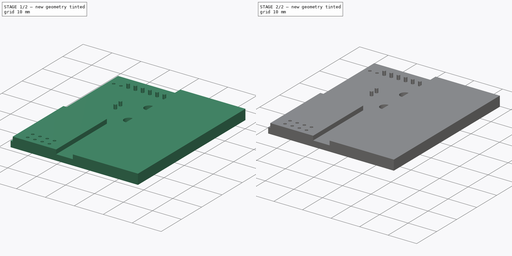
[diagram: build sequence overview — one tinted view per stage of 2, left to right]
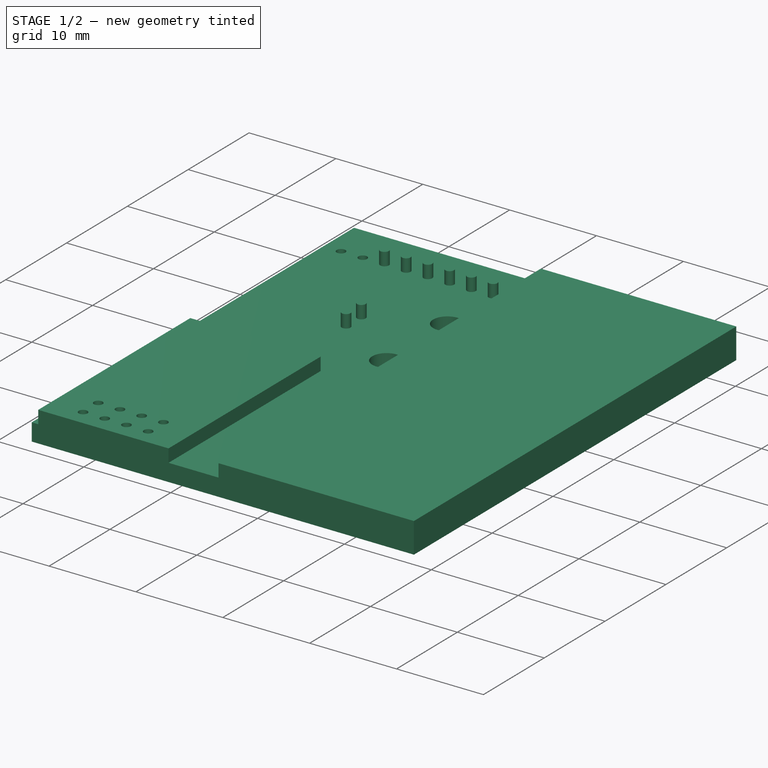
[diagram: stage 1 of 2 — iso view after this stage's code; geometry added in this stage tinted green]
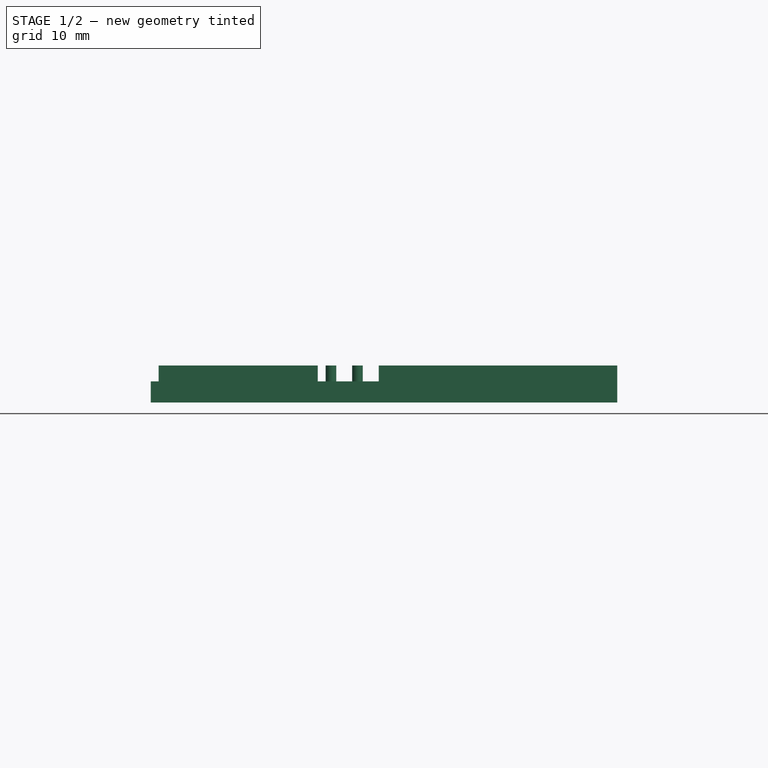
[diagram: stage 1 of 2 — front view after this stage's code; geometry added in this stage tinted green]
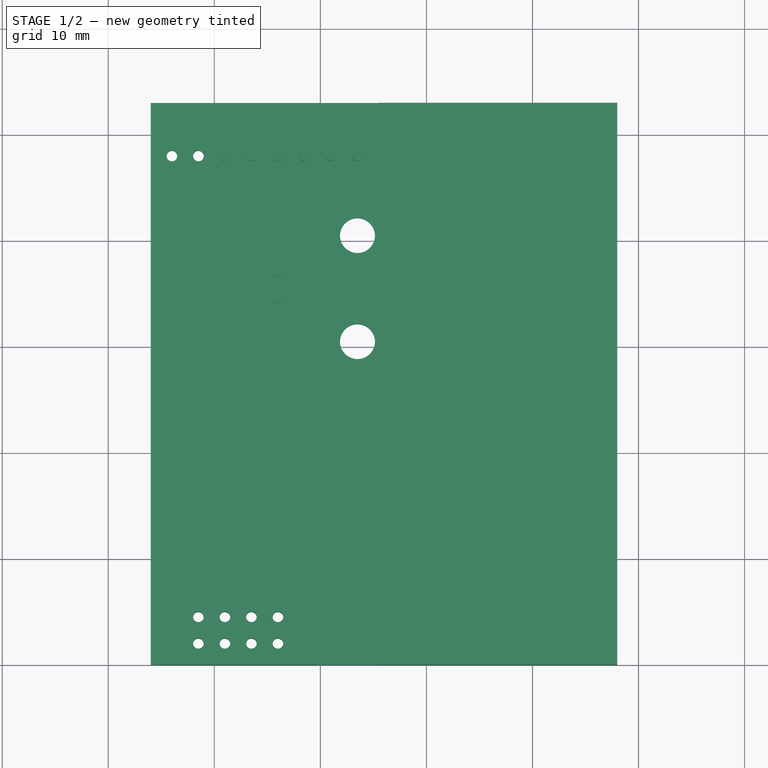
[diagram: stage 1 of 2 — top view after this stage's code; geometry added in this stage tinted green]
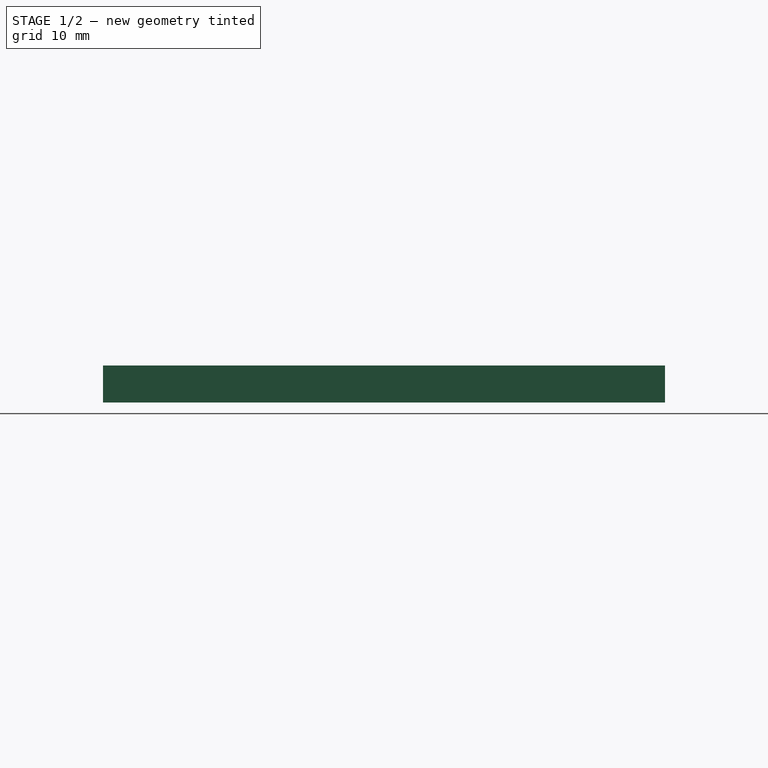
[diagram: stage 1 of 2 — right view after this stage's code; geometry added in this stage tinted green]
FCSTD DOCUMENT  (FreeCAD 0.19R24276 (Git))
Label: pcb_common_v1
License: All rights reserved
LicenseURL: http://en.wikipedia.org/wiki/All_rights_reserved
objects: Sketcher::SketchObject×3, PartDesign::Pad×3, PartDesign::Body×1
note: 10 computed .brp shape members not serialized (recipe doc carries the construction recipe); baked Part::Feature solids carry a one-line shape summary decoded from their .brp

FEATURE [Sketcher::SketchObject] Sketch
  FullyConstrained = false
  MapMode = 5
  Support = -> [XY_Plane]
  sketch-geometry (35):
    g0: LineSegment StartX=0 StartY=0 StartZ=0 EndX=38 EndY=0 EndZ=0
    g1: LineSegment StartX=38 StartY=0 StartZ=0 EndX=38 EndY=53 EndZ=0
    g2: LineSegment StartX=0 StartY=53 StartZ=0 EndX=0 EndY=0 EndZ=0
    g3: LineSegment StartX=15 StartY=0 StartZ=0 EndX=15 EndY=53 EndZ=0
    g4: Circle CenterX=13.5 CenterY=40.5 CenterZ=0 NormalX=0 NormalY=0 NormalZ=1 AngleXU=0 Radius=1.65
    g5: Circle CenterX=13.5 CenterY=30.5 CenterZ=0 NormalX=0 NormalY=0 NormalZ=1 AngleXU=0 Radius=1.65
    g6: Circle CenterX=1 CenterY=48 CenterZ=0 NormalX=0 NormalY=0 NormalZ=1 AngleXU=0 Radius=0.5
    g7: Circle CenterX=3.5 CenterY=48 CenterZ=0 NormalX=0 NormalY=0 NormalZ=1 AngleXU=0 Radius=0.5
    g8: Circle CenterX=6 CenterY=48 CenterZ=0 NormalX=0 NormalY=0 NormalZ=1 AngleXU=0 Radius=0.5
    g9: Circle CenterX=8.5 CenterY=48 CenterZ=0 NormalX=0 NormalY=0 NormalZ=1 AngleXU=0 Radius=0.5
    g10: Circle CenterX=11 CenterY=48 CenterZ=0 NormalX=0 NormalY=0 NormalZ=1 AngleXU=0 Radius=0.5
    g11: Circle CenterX=13.5 CenterY=48 CenterZ=0 NormalX=0 NormalY=0 NormalZ=1 AngleXU=0 Radius=0.5
    g12: Circle CenterX=-4 CenterY=48 CenterZ=0 NormalX=0 NormalY=0 NormalZ=1 AngleXU=0 Radius=0.5
    g13: Circle CenterX=-1.5 CenterY=48 CenterZ=0 NormalX=0 NormalY=0 NormalZ=1 AngleXU=0 Radius=0.5
    g14: LineSegment StartX=-6 StartY=53 StartZ=0 EndX=-6 EndY=0 EndZ=0
    g15: LineSegment StartX=0 StartY=0 StartZ=0 EndX=-6 EndY=0 EndZ=0
    g16: LineSegment StartX=-6 StartY=53 StartZ=0 EndX=0 EndY=53 EndZ=0
    g17: LineSegment StartX=0 StartY=53 StartZ=0 EndX=15 EndY=53 EndZ=0
    g18: LineSegment StartX=15 StartY=53 StartZ=0 EndX=38 EndY=53 EndZ=0
    g19: LineSegment StartX=-6 StartY=0 StartZ=0 EndX=38 EndY=0 EndZ=0
    g20: LineSegment StartX=38 StartY=0 StartZ=0 EndX=38 EndY=53 EndZ=0
    g21: LineSegment StartX=38 StartY=53 StartZ=0 EndX=-6 EndY=53 EndZ=0
    g22: LineSegment StartX=-6 StartY=53 StartZ=0 EndX=-6 EndY=0 EndZ=0
    g23: Circle CenterX=3.5 CenterY=4.5 CenterZ=0 NormalX=0 NormalY=0 NormalZ=1 AngleXU=0 Radius=0.5
    g24: Circle CenterX=6 CenterY=4.5 CenterZ=0 NormalX=0 NormalY=0 NormalZ=1 AngleXU=0 Radius=0.5
    g25: Circle CenterX=-1.5 CenterY=4.5 CenterZ=0 NormalX=0 NormalY=0 NormalZ=1 AngleXU=0 Radius=0.5
    g26: Circle CenterX=1 CenterY=4.5 CenterZ=0 NormalX=0 NormalY=0 NormalZ=1 AngleXU=0 Radius=0.5
    g27: Circle CenterX=3.5 CenterY=2 CenterZ=0 NormalX=0 NormalY=0 NormalZ=1 AngleXU=0 Radius=0.5
    g28: Circle CenterX=6 CenterY=2 CenterZ=0 NormalX=0 NormalY=0 NormalZ=1 AngleXU=0 Radius=0.5
    g29: Circle CenterX=-1.5 CenterY=2 CenterZ=0 NormalX=0 NormalY=0 NormalZ=1 AngleXU=0 Radius=0.5
    g30: Circle CenterX=1 CenterY=2 CenterZ=0 NormalX=0 NormalY=0 NormalZ=1 AngleXU=0 Radius=0.5
    g31: LineSegment StartX=-5.25 StartY=25 StartZ=0 EndX=9.75 EndY=25 EndZ=0
    g32: LineSegment StartX=9.75 StartY=25 StartZ=0 EndX=9.75 EndY=0 EndZ=0
    g33: LineSegment StartX=9.75 StartY=0 StartZ=0 EndX=-5.25 EndY=0 EndZ=0
    g34: LineSegment StartX=-5.25 StartY=0 StartZ=0 EndX=-5.25 EndY=25 EndZ=0
  constraints (98):
    c: Coincident(g0,g1)
    c: Coincident(g2,g0)
    c: Horizontal(g0)
    c: Vertical(g1)
    c: Vertical(g2)
    c: Coincident(g0,g-1)
    c: DistanceX(g0,g0) = 38
    c: DistanceY(g1,g1) = 53
    c: Vertical(g3)
    c: DistanceX(g3,g1) = 23
    c: Vertical(g5,g4)
    c: Diameter(g4) = 3.3
    c: Equal(g4,g5)
    c: DistanceY(g5,g4) = 10
    c: DistanceY(g4,g2) = 12.5
    c: DistanceX(g4,g1) = 24.5
    c: Horizontal(g6,g7)
    c: Diameter(g7) = 1
    c: Equal(g6,g7)
    c: DistanceX(g6,g7) = 2.5
    c: Horizontal(g8,g9)
    c: Equal(g7,g9) = 1
    c: Equal(g8,g9)
    c: DistanceX(g8,g9) = 2.5
    c: DistanceX(g7,g8) = 2.5
    c: Horizontal(g10,g11)
    c: Equal(g10,g11)
    c: DistanceX(g10,g11) = 2.5
    c: Horizontal(g9,g10)
    c: DistanceX(g9,g10) = 2.5
    c: Vertical(g11,g4)
    c: DistanceY(g4,g11) = 7.5
    c: Horizontal(g7,g8)
    c: Equal(g10,g9)
    c: Horizontal(g12,g13)
    c: Equal(g7,g13) = 1
    c: Equal(g12,g13)
    c: DistanceX(g12,g13) = 2.5
    c: Horizontal(g13,g6)
    c: DistanceX(g13,g6) = 2.5
    c: Vertical(g14)
    c: Coincident(g15,g-1)
    c: Coincident(g15,g14)
    c: DistanceX(g14,g12) = 2
    c: Horizontal(g15)
    c: Coincident(g16,g14)
    c: Coincident(g16,g2)
    c: Coincident(g17,g2)
    c: Coincident(g17,g3)
    c: Horizontal(g17)
    c: Coincident(g18,g3)
    c: Coincident(g18,g1)
    c: Horizontal(g18)
    c: Horizontal(g16)
    c: Coincident(g19,g14)
    c: Coincident(g19,g0)
    c: Coincident(g20,g19)
    c: Coincident(g20,g1)
    c: Coincident(g21,g20)
    c: Coincident(g21,g14)
    c: Coincident(g22,g21)
    c: Coincident(g22,g19)
    c: Horizontal(g23,g24)
    c: Equal(g7,g24) = 1
    c: Equal(g23,g24)
    c: DistanceX(g23,g24) = 2.5
    c: Horizontal(g25,g26)
    c: Equal(g24,g26) = 1
    c: Equal(g25,g26)
    c: DistanceX(g25,g26) = 2.5
    c: Horizontal(g26,g23)
    c: DistanceX(g26,g23) = 2.5
    c: Horizontal(g27,g28)
    c: Equal(g27,g28)
    c: DistanceX(g27,g28) = 2.5
    c: Horizontal(g29,g30)
    c: Equal(g28,g30) = 1
    c: Equal(g29,g30)
    c: DistanceX(g29,g30) = 2.5
    c: Horizontal(g30,g27)
    c: DistanceX(g30,g27) = 2.5
    c: Vertical(g29,g25)
    c: DistanceY(g29,g25) = 2.5
    c: DistanceY(g-1,g29) = 2
    c: PointOnObject(g3,g0)
    c: Coincident(g31,g32)
    c: Coincident(g32,g33)
    c: Coincident(g33,g34)
    c: Coincident(g34,g31)
    c: Horizontal(g31)
    c: Horizontal(g33)
    c: Vertical(g32)
    c: Vertical(g34)
    c: DistanceX(g33,g29) = 3.75
    c: DistanceX(g28,g32) = 3.75
    c: Horizontal(g33,g19)
    c: Vertical(g25,g13)
    c: DistanceY(g32,g31) = 25
FEATURE [Sketcher::SketchObject] Sketch001
  FullyConstrained = false
  MapMode = 5
  Placement = pos=(0,0,1.5) rot=(0,0,1;0rad)
  sketch-geometry (43):
    g0: LineSegment StartX=0 StartY=0 StartZ=0 EndX=38 EndY=0 EndZ=0
    g1: LineSegment StartX=38 StartY=0 StartZ=0 EndX=38 EndY=53 EndZ=0
    g2: LineSegment StartX=15 StartY=25 StartZ=0 EndX=15 EndY=53 EndZ=0
    g3: Circle CenterX=13.5 CenterY=40.5 CenterZ=0 NormalX=0 NormalY=0 NormalZ=1 AngleXU=0 Radius=1.65
    g4: Circle CenterX=13.5 CenterY=30.5 CenterZ=0 NormalX=0 NormalY=0 NormalZ=1 AngleXU=0 Radius=1.65
    g5: LineSegment StartX=15 StartY=25 StartZ=0 EndX=15 EndY=0 EndZ=0
    g6: Circle CenterX=1 CenterY=48 CenterZ=0 NormalX=0 NormalY=0 NormalZ=1 AngleXU=0 Radius=0.5
    g7: Circle CenterX=3.5 CenterY=48 CenterZ=0 NormalX=0 NormalY=0 NormalZ=1 AngleXU=0 Radius=0.5
    g8: Circle CenterX=6 CenterY=48 CenterZ=0 NormalX=0 NormalY=0 NormalZ=1 AngleXU=0 Radius=0.5
    g9: Circle CenterX=8.5 CenterY=48 CenterZ=0 NormalX=0 NormalY=0 NormalZ=1 AngleXU=0 Radius=0.5
    g10: Circle CenterX=11 CenterY=48 CenterZ=0 NormalX=0 NormalY=0 NormalZ=1 AngleXU=0 Radius=0.5
    g11: Circle CenterX=13.5 CenterY=48 CenterZ=0 NormalX=0 NormalY=0 NormalZ=1 AngleXU=0 Radius=0.5
    g12: Circle CenterX=-4 CenterY=48 CenterZ=0 NormalX=0 NormalY=0 NormalZ=1 AngleXU=0 Radius=0.5
    g13: Circle CenterX=-1.5 CenterY=48 CenterZ=0 NormalX=0 NormalY=0 NormalZ=1 AngleXU=0 Radius=0.5
    g14: LineSegment StartX=-6 StartY=53 StartZ=0 EndX=-6 EndY=0 EndZ=0
    g15: LineSegment StartX=0 StartY=0 StartZ=0 EndX=-6 EndY=0 EndZ=0
    g16: LineSegment StartX=-6 StartY=53 StartZ=0 EndX=0 EndY=53 EndZ=0
    g17: LineSegment StartX=0 StartY=53 StartZ=0 EndX=15 EndY=53 EndZ=0
    g18: LineSegment StartX=15 StartY=53 StartZ=0 EndX=38 EndY=53 EndZ=0
    g19: LineSegment StartX=-6 StartY=0 StartZ=0 EndX=38 EndY=0 EndZ=0
    g20: LineSegment StartX=38 StartY=0 StartZ=0 EndX=38 EndY=53 EndZ=0
    g21: LineSegment StartX=38 StartY=53 StartZ=0 EndX=-6 EndY=53 EndZ=0
    g22: LineSegment StartX=-6 StartY=53 StartZ=0 EndX=-6 EndY=0 EndZ=0
    g23: LineSegment StartX=0 StartY=0 StartZ=0 EndX=15 EndY=0 EndZ=0
    g24: LineSegment StartX=15.5 StartY=0 StartZ=0 EndX=15.5 EndY=53 EndZ=0
    g25: LineSegment StartX=38 StartY=0 StartZ=0 EndX=15.5 EndY=0 EndZ=0
    g26: LineSegment StartX=38 StartY=0 StartZ=0 EndX=38 EndY=53 EndZ=0
    g27: LineSegment StartX=15.5 StartY=53 StartZ=0 EndX=38 EndY=53 EndZ=0
    g28: LineSegment StartX=-5.25 StartY=25 StartZ=0 EndX=9.75 EndY=25 EndZ=0
    g29: LineSegment StartX=9.75 StartY=25 StartZ=0 EndX=9.75 EndY=0 EndZ=0
    g30: Circle CenterX=3.5 CenterY=4.51513 CenterZ=0 NormalX=0 NormalY=0 NormalZ=1 AngleXU=0 Radius=0.5
    g31: Circle CenterX=6 CenterY=4.51513 CenterZ=0 NormalX=0 NormalY=0 NormalZ=1 AngleXU=0 Radius=0.5
    g32: Circle CenterX=-1.5 CenterY=4.51513 CenterZ=0 NormalX=0 NormalY=0 NormalZ=1 AngleXU=0 Radius=0.5
    g33: Circle CenterX=1 CenterY=4.51513 CenterZ=0 NormalX=0 NormalY=0 NormalZ=1 AngleXU=0 Radius=0.5
    g34: Circle CenterX=3.5 CenterY=2.01513 CenterZ=0 NormalX=0 NormalY=0 NormalZ=1 AngleXU=0 Radius=0.5
    g35: Circle CenterX=6 CenterY=2.01513 CenterZ=0 NormalX=0 NormalY=0 NormalZ=1 AngleXU=0 Radius=0.5
    g36: Circle CenterX=-1.5 CenterY=2.01513 CenterZ=0 NormalX=0 NormalY=0 NormalZ=1 AngleXU=0 Radius=0.5
    g37: Circle CenterX=1 CenterY=2.01513 CenterZ=0 NormalX=0 NormalY=0 NormalZ=1 AngleXU=0 Radius=0.5
    g38: LineSegment StartX=2.25 StartY=0.015131 StartZ=0 EndX=2.25 EndY=4.51513 EndZ=0
    g39: LineSegment StartX=-5.25 StartY=25 StartZ=0 EndX=-5.25 EndY=0 EndZ=0
    g40: LineSegment StartX=-5.25 StartY=0 StartZ=0 EndX=9.75 EndY=0 EndZ=0
    g41: Circle CenterX=6 CenterY=37.0492 CenterZ=0 NormalX=0 NormalY=0 NormalZ=1 AngleXU=0 Radius=0.5
    g42: Circle CenterX=6 CenterY=34.5492 CenterZ=0 NormalX=0 NormalY=0 NormalZ=1 AngleXU=0 Radius=0.5
  constraints (113):
    c: Coincident(g0,g1)
    c: Horizontal(g0)
    c: Vertical(g1)
    c: Coincident(g0,g-1)
    c: DistanceX(g0,g0) = 38
    c: DistanceY(g1,g1) = 53
    c: Vertical(g2)
    c: DistanceX(g2,g1) = 23
    c: Vertical(g4,g3)
    c: Diameter(g3) = 3.3
    c: Equal(g3,g4)
    c: DistanceY(g4,g3) = 10
    c: DistanceY(g3,g16) = 12.5
    c: DistanceX(g3,g1) = 24.5
    c: Vertical(g5)
    c: PointOnObject(g5,g0)
    c: Horizontal(g6,g7)
    c: Diameter(g7) = 1
    c: Equal(g6,g7)
    c: DistanceX(g6,g7) = 2.5
    c: Horizontal(g8,g9)
    c: Equal(g7,g9) = 1
    c: Equal(g8,g9)
    c: DistanceX(g8,g9) = 2.5
    c: DistanceX(g7,g8) = 2.5
    c: Horizontal(g10,g11)
    c: Equal(g10,g11)
    c: DistanceX(g10,g11) = 2.5
    c: Horizontal(g9,g10)
    c: DistanceX(g9,g10) = 2.5
    c: Vertical(g11,g3)
    c: DistanceY(g3,g11) = 7.5
    c: Horizontal(g7,g8)
    c: Equal(g10,g9)
    c: Horizontal(g12,g13)
    c: Equal(g7,g13) = 1
    c: Equal(g12,g13)
    c: DistanceX(g12,g13) = 2.5
    c: Horizontal(g13,g6)
    c: DistanceX(g13,g6) = 2.5
    c: Vertical(g14)
    c: Coincident(g15,g-1)
    c: Coincident(g15,g14)
    c: DistanceX(g14,g12) = 2
    c: Horizontal(g15)
    c: Coincident(g16,g14)
    c: Coincident(g17,g2)
    c: Horizontal(g17)
    c: Coincident(g18,g2)
    c: Coincident(g18,g1)
    c: Horizontal(g18)
    c: Horizontal(g16)
    c: Coincident(g19,g14)
    c: Coincident(g19,g0)
    c: Coincident(g20,g19)
    c: Coincident(g20,g1)
    c: Coincident(g21,g20)
    c: Coincident(g21,g14)
    c: Coincident(g22,g21)
    c: Coincident(g22,g19)
    c: Coincident(g23,g5)
    c: Vertical(g24)
    c: DistanceX(g5,g24) = 0.5
    c: Coincident(g25,g0)
    c: Coincident(g25,g24)
    c: Horizontal(g25)
    c: Coincident(g26,g25)
    c: Vertical(g26)
    c: Coincident(g27,g24)
    c: Coincident(g27,g26)
    c: Horizontal(g27)
    c: Horizontal(g24,g2)
    c: Horizontal(g28)
    c: Coincident(g29,g28)
    c: Vertical(g29)
    c: Horizontal(g30,g31)
    c: Equal(g30,g31)
    c: DistanceX(g30,g31) = 2.5
    c: Horizontal(g32,g33)
    c: Equal(g31,g33) = 1
    c: Equal(g32,g33)
    c: DistanceX(g32,g33) = 2.5
    c: Horizontal(g33,g30)
    c: DistanceX(g33,g30) = 2.5
    c: Horizontal(g34,g35)
    c: Equal(g34,g35)
    c: DistanceX(g34,g35) = 2.5
    c: Horizontal(g36,g37)
    c: Equal(g35,g37) = 1
    c: Equal(g36,g37)
    c: DistanceX(g36,g37) = 2.5
    c: Horizontal(g37,g34)
    c: DistanceX(g37,g34) = 2.5
    c: Vertical(g36,g32)
    c: DistanceY(g36,g32) = 2.5
    c: Vertical(g38)
    c: Symmetric(g33,g30,g38)
    c: Coincident(g39,g28)
    c: Coincident(g40,g39)
    c: Coincident(g40,g29)
    c: PointOnObject(g40,g-1)
    c: Vertical(g39)
    c: DistanceX(g39,g36) = 3.75
    c: DistanceX(g40,g40) = 15
    c: DistanceY(g39,g39) = 25
    c: Horizontal(g40)
    c: Vertical(g32,g13)
    c: DistanceX(g25,g25) = 22.5
    c: Vertical(g41,g42)
    c: DistanceY(g42,g41) = 2.5
    c: Vertical(g8,g41)
    c: Equal(g8,g41)
    c: Equal(g41,g42)
FEATURE [PartDesign::Pad] Pad
  Direction = (1,1,1)
  Length = 2
  Length2 = 100
  Profile = -> Sketch
  Type = 0
FEATURE [PartDesign::Pad] Pad001
  BaseFeature = -> Pad
  Direction = (1,1,1)
  Length = 2
  Length2 = 100
  Profile = -> Sketch001
  Type = 0
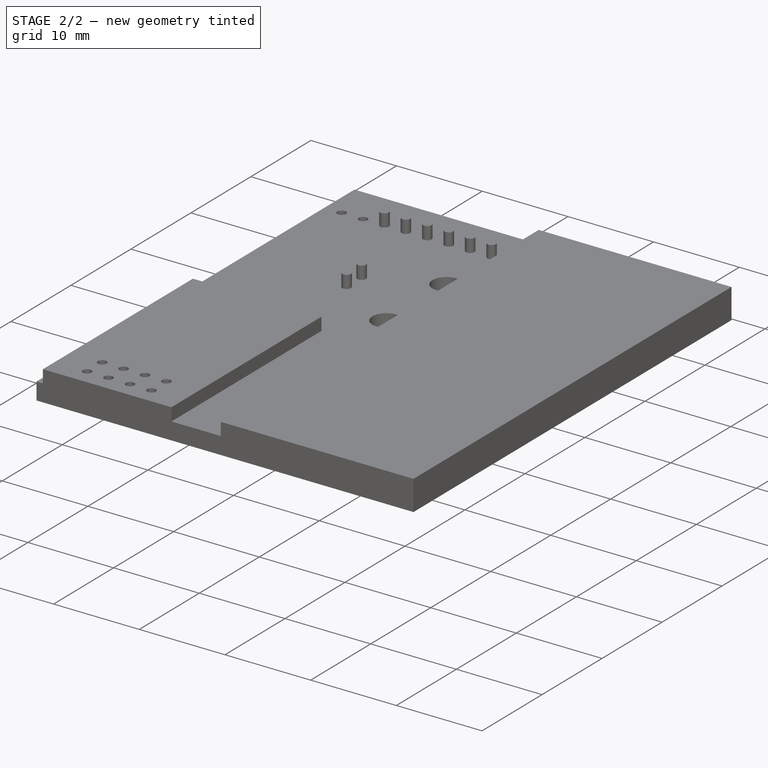
[diagram: stage 2 of 2 — iso view after this stage's code; geometry added in this stage tinted green]
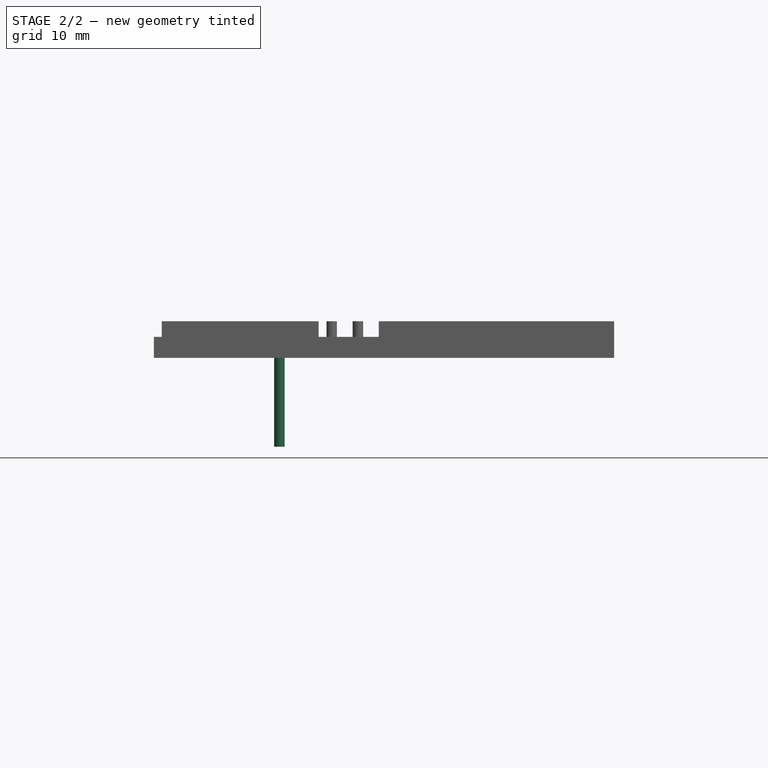
[diagram: stage 2 of 2 — front view after this stage's code; geometry added in this stage tinted green]
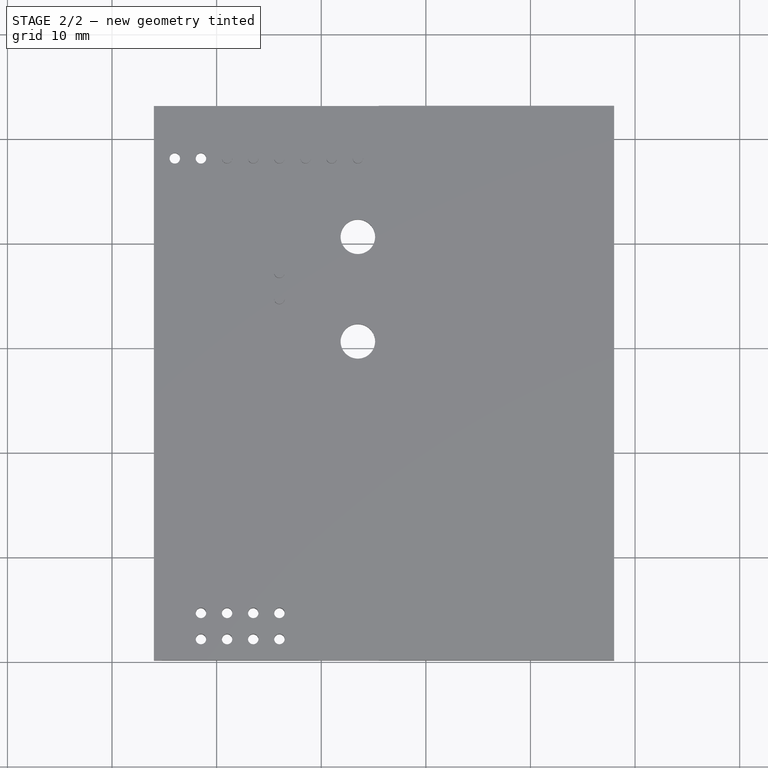
[diagram: stage 2 of 2 — top view after this stage's code; geometry added in this stage tinted green]
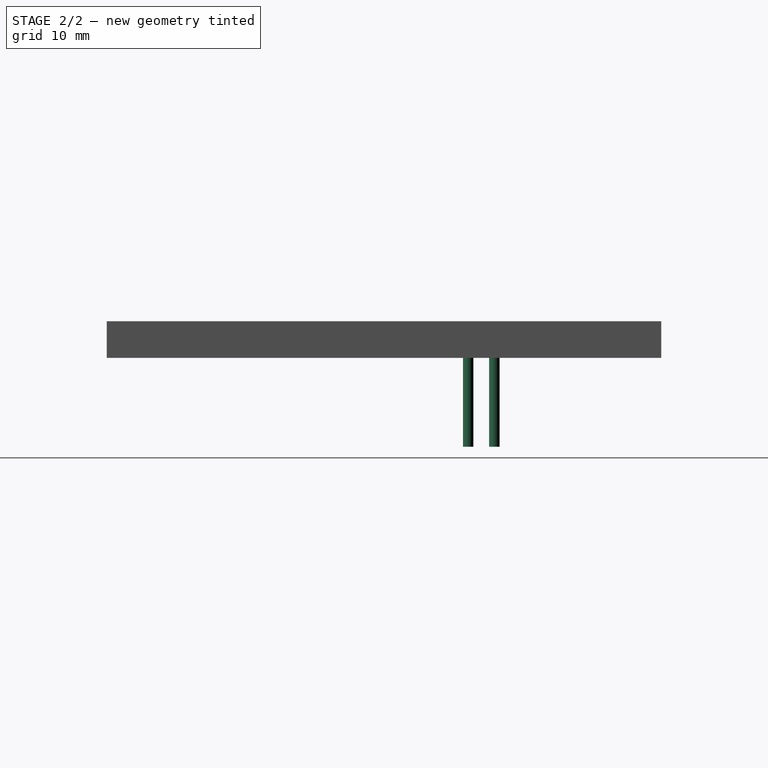
[diagram: stage 2 of 2 — right view after this stage's code; geometry added in this stage tinted green]
FEATURE [Sketcher::SketchObject] Sketch002
  FullyConstrained = false
  MapMode = 5
  Placement = pos=(0,0,1.5) rot=(0,0,1;0rad)
  sketch-geometry (43):
    g0: LineSegment StartX=0 StartY=0 StartZ=0 EndX=38 EndY=0 EndZ=0
    g1: LineSegment StartX=38 StartY=0 StartZ=0 EndX=38 EndY=53 EndZ=0
    g2: LineSegment StartX=15 StartY=25 StartZ=0 EndX=15 EndY=53 EndZ=0
    g3: Circle CenterX=13.5 CenterY=40.5 CenterZ=0 NormalX=0 NormalY=0 NormalZ=1 AngleXU=0 Radius=1.65
    g4: Circle CenterX=13.5 CenterY=30.5 CenterZ=0 NormalX=0 NormalY=0 NormalZ=1 AngleXU=0 Radius=1.65
    g5: LineSegment StartX=15 StartY=25 StartZ=0 EndX=15 EndY=0 EndZ=0
    g6: Circle CenterX=1 CenterY=48 CenterZ=0 NormalX=0 NormalY=0 NormalZ=1 AngleXU=0 Radius=0.5
    g7: Circle CenterX=3.5 CenterY=48 CenterZ=0 NormalX=0 NormalY=0 NormalZ=1 AngleXU=0 Radius=0.5
    g8: Circle CenterX=6 CenterY=48 CenterZ=0 NormalX=0 NormalY=0 NormalZ=1 AngleXU=0 Radius=0.5
    g9: Circle CenterX=8.5 CenterY=48 CenterZ=0 NormalX=0 NormalY=0 NormalZ=1 AngleXU=0 Radius=0.5
    g10: Circle CenterX=11 CenterY=48 CenterZ=0 NormalX=0 NormalY=0 NormalZ=1 AngleXU=0 Radius=0.5
    g11: Circle CenterX=13.5 CenterY=48 CenterZ=0 NormalX=0 NormalY=0 NormalZ=1 AngleXU=0 Radius=0.5
    g12: Circle CenterX=-4 CenterY=48 CenterZ=0 NormalX=0 NormalY=0 NormalZ=1 AngleXU=0 Radius=0.5
    g13: Circle CenterX=-1.5 CenterY=48 CenterZ=0 NormalX=0 NormalY=0 NormalZ=1 AngleXU=0 Radius=0.5
    g14: LineSegment StartX=-6 StartY=53 StartZ=0 EndX=-6 EndY=0 EndZ=0
    g15: LineSegment StartX=0 StartY=0 StartZ=0 EndX=-6 EndY=0 EndZ=0
    g16: LineSegment StartX=-6 StartY=53 StartZ=0 EndX=0 EndY=53 EndZ=0
    g17: LineSegment StartX=0 StartY=53 StartZ=0 EndX=15 EndY=53 EndZ=0
    g18: LineSegment StartX=15 StartY=53 StartZ=0 EndX=38 EndY=53 EndZ=0
    g19: LineSegment StartX=-6 StartY=0 StartZ=0 EndX=38 EndY=0 EndZ=0
    g20: LineSegment StartX=38 StartY=0 StartZ=0 EndX=38 EndY=53 EndZ=0
    g21: LineSegment StartX=38 StartY=53 StartZ=0 EndX=-6 EndY=53 EndZ=0
    g22: LineSegment StartX=-6 StartY=53 StartZ=0 EndX=-6 EndY=0 EndZ=0
    g23: LineSegment StartX=0 StartY=0 StartZ=0 EndX=15 EndY=0 EndZ=0
    g24: LineSegment StartX=15.5 StartY=0 StartZ=0 EndX=15.5 EndY=53 EndZ=0
    g25: LineSegment StartX=38 StartY=0 StartZ=0 EndX=15.5 EndY=0 EndZ=0
    g26: LineSegment StartX=38 StartY=0 StartZ=0 EndX=38 EndY=53 EndZ=0
    g27: LineSegment StartX=15.5 StartY=53 StartZ=0 EndX=38 EndY=53 EndZ=0
    g28: LineSegment StartX=-5.25 StartY=25 StartZ=0 EndX=9.75 EndY=25 EndZ=0
    g29: LineSegment StartX=9.75 StartY=25 StartZ=0 EndX=9.75 EndY=0 EndZ=0
    g30: Circle CenterX=3.5 CenterY=4.51513 CenterZ=0 NormalX=0 NormalY=0 NormalZ=1 AngleXU=0 Radius=0.5
    g31: Circle CenterX=6 CenterY=4.51513 CenterZ=0 NormalX=0 NormalY=0 NormalZ=1 AngleXU=0 Radius=0.5
    g32: Circle CenterX=-1.5 CenterY=4.51513 CenterZ=0 NormalX=0 NormalY=0 NormalZ=1 AngleXU=0 Radius=0.5
    g33: Circle CenterX=1 CenterY=4.51513 CenterZ=0 NormalX=0 NormalY=0 NormalZ=1 AngleXU=0 Radius=0.5
    g34: Circle CenterX=3.5 CenterY=2.01513 CenterZ=0 NormalX=0 NormalY=0 NormalZ=1 AngleXU=0 Radius=0.5
    g35: Circle CenterX=6 CenterY=2.01513 CenterZ=0 NormalX=0 NormalY=0 NormalZ=1 AngleXU=0 Radius=0.5
    g36: Circle CenterX=-1.5 CenterY=2.01513 CenterZ=0 NormalX=0 NormalY=0 NormalZ=1 AngleXU=0 Radius=0.5
    g37: Circle CenterX=1 CenterY=2.01513 CenterZ=0 NormalX=0 NormalY=0 NormalZ=1 AngleXU=0 Radius=0.5
    g38: LineSegment StartX=2.25 StartY=0.015131 StartZ=0 EndX=2.25 EndY=4.51513 EndZ=0
    g39: LineSegment StartX=-5.25 StartY=25 StartZ=0 EndX=-5.25 EndY=0 EndZ=0
    g40: LineSegment StartX=-5.25 StartY=0 StartZ=0 EndX=9.75 EndY=0 EndZ=0
    g41: Circle CenterX=6 CenterY=37.0492 CenterZ=0 NormalX=0 NormalY=0 NormalZ=1 AngleXU=0 Radius=0.5
    g42: Circle CenterX=6 CenterY=34.5492 CenterZ=0 NormalX=0 NormalY=0 NormalZ=1 AngleXU=0 Radius=0.5
  constraints (113):
    c: Coincident(g0,g1)
    c: Horizontal(g0)
    c: Vertical(g1)
    c: Coincident(g0,g-1)
    c: DistanceX(g0,g0) = 38
    c: DistanceY(g1,g1) = 53
    c: Vertical(g2)
    c: DistanceX(g2,g1) = 23
    c: Vertical(g4,g3)
    c: Diameter(g3) = 3.3
    c: Equal(g3,g4)
    c: DistanceY(g4,g3) = 10
    c: DistanceY(g3,g16) = 12.5
    c: DistanceX(g3,g1) = 24.5
    c: Vertical(g5)
    c: PointOnObject(g5,g0)
    c: Horizontal(g6,g7)
    c: Diameter(g7) = 1
    c: Equal(g6,g7)
    c: DistanceX(g6,g7) = 2.5
    c: Horizontal(g8,g9)
    c: Equal(g7,g9) = 1
    c: Equal(g8,g9)
    c: DistanceX(g8,g9) = 2.5
    c: DistanceX(g7,g8) = 2.5
    c: Horizontal(g10,g11)
    c: Equal(g10,g11)
    c: DistanceX(g10,g11) = 2.5
    c: Horizontal(g9,g10)
    c: DistanceX(g9,g10) = 2.5
    c: Vertical(g11,g3)
    c: DistanceY(g3,g11) = 7.5
    c: Horizontal(g7,g8)
    c: Equal(g10,g9)
    c: Horizontal(g12,g13)
    c: Equal(g7,g13) = 1
    c: Equal(g12,g13)
    c: DistanceX(g12,g13) = 2.5
    c: Horizontal(g13,g6)
    c: DistanceX(g13,g6) = 2.5
    c: Vertical(g14)
    c: Coincident(g15,g-1)
    c: Coincident(g15,g14)
    c: DistanceX(g14,g12) = 2
    c: Horizontal(g15)
    c: Coincident(g16,g14)
    c: Coincident(g17,g2)
    c: Horizontal(g17)
    c: Coincident(g18,g2)
    c: Coincident(g18,g1)
    c: Horizontal(g18)
    c: Horizontal(g16)
    c: Coincident(g19,g14)
    c: Coincident(g19,g0)
    c: Coincident(g20,g19)
    c: Coincident(g20,g1)
    c: Coincident(g21,g20)
    c: Coincident(g21,g14)
    c: Coincident(g22,g21)
    c: Coincident(g22,g19)
    c: Coincident(g23,g5)
    c: Vertical(g24)
    c: DistanceX(g5,g24) = 0.5
    c: Coincident(g25,g0)
    c: Coincident(g25,g24)
    c: Horizontal(g25)
    c: Coincident(g26,g25)
    c: Vertical(g26)
    c: Coincident(g27,g24)
    c: Coincident(g27,g26)
    c: Horizontal(g27)
    c: Horizontal(g24,g2)
    c: Horizontal(g28)
    c: Coincident(g29,g28)
    c: Vertical(g29)
    c: Horizontal(g30,g31)
    c: Equal(g30,g31)
    c: DistanceX(g30,g31) = 2.5
    c: Horizontal(g32,g33)
    c: Equal(g31,g33) = 1
    c: Equal(g32,g33)
    c: DistanceX(g32,g33) = 2.5
    c: Horizontal(g33,g30)
    c: DistanceX(g33,g30) = 2.5
    c: Horizontal(g34,g35)
    c: Equal(g34,g35)
    c: DistanceX(g34,g35) = 2.5
    c: Horizontal(g36,g37)
    c: Equal(g35,g37) = 1
    c: Equal(g36,g37)
    c: DistanceX(g36,g37) = 2.5
    c: Horizontal(g37,g34)
    c: DistanceX(g37,g34) = 2.5
    c: Vertical(g36,g32)
    c: DistanceY(g36,g32) = 2.5
    c: Vertical(g38)
    c: Symmetric(g33,g30,g38)
    c: Coincident(g39,g28)
    c: Coincident(g40,g39)
    c: Coincident(g40,g29)
    c: PointOnObject(g40,g-1)
    c: Vertical(g39)
    c: DistanceX(g39,g36) = 3.75
    c: DistanceX(g40,g40) = 15
    c: DistanceY(g39,g39) = 25
    c: Horizontal(g40)
    c: Vertical(g32,g13)
    c: DistanceX(g25,g25) = 22.5
    c: Vertical(g41,g42)
    c: DistanceY(g42,g41) = 2.5
    c: Vertical(g8,g41)
    c: Equal(g8,g41)
    c: Equal(g41,g42)
FEATURE [PartDesign::Pad] Pad002
  BaseFeature = -> Pad001
  Direction = (1,1,1)
  Length = 10
  Length2 = 100
  Profile = -> Sketch002
  Reversed = true
  Type = 0
FEATURE [PartDesign::Body] Body
  Group = -> [Sketch,Pad,Sketch001,Pad001,Sketch002,Pad002]
  Origin = -> Origin
  Tip = -> Pad002
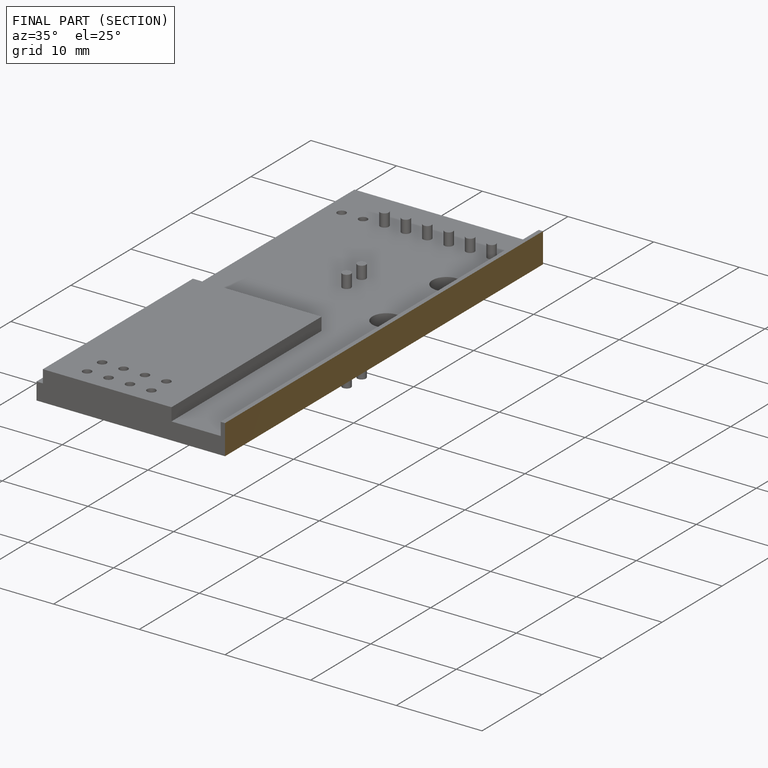
[diagram: finished part — half-section view (interior)]
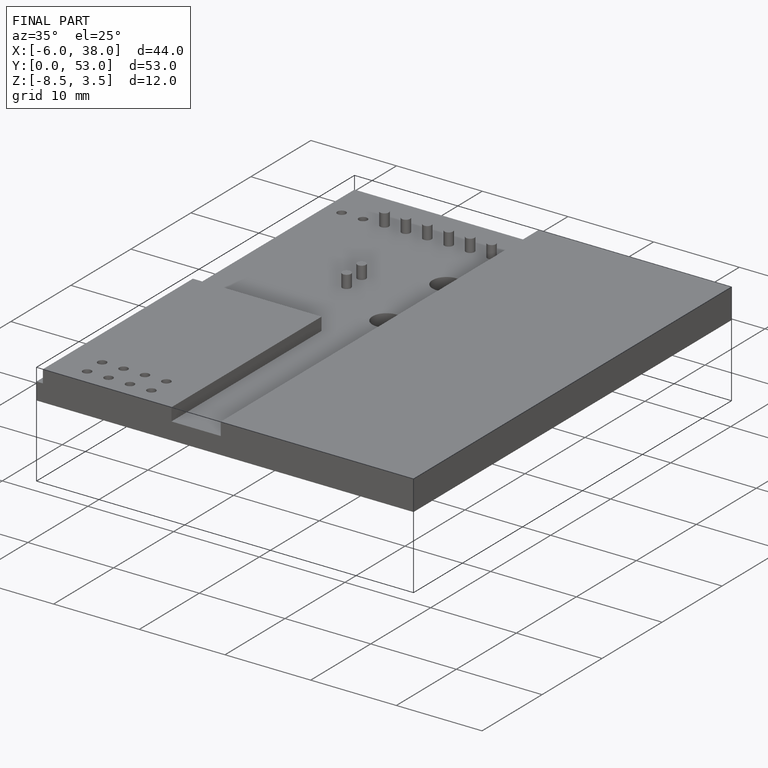
[diagram: finished part — iso view with bounding-box wireframe]
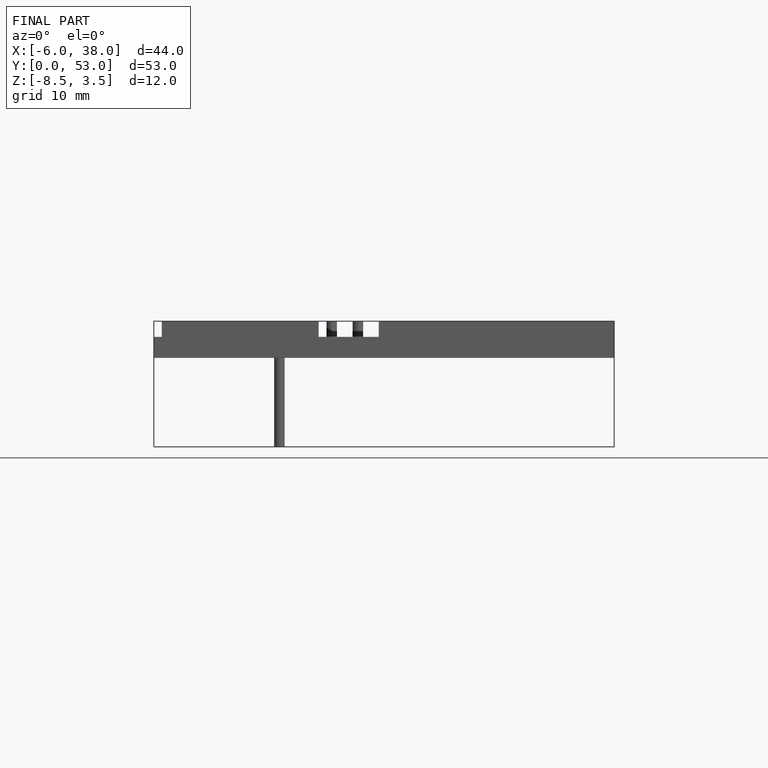
[diagram: finished part — front view with bounding-box wireframe]
